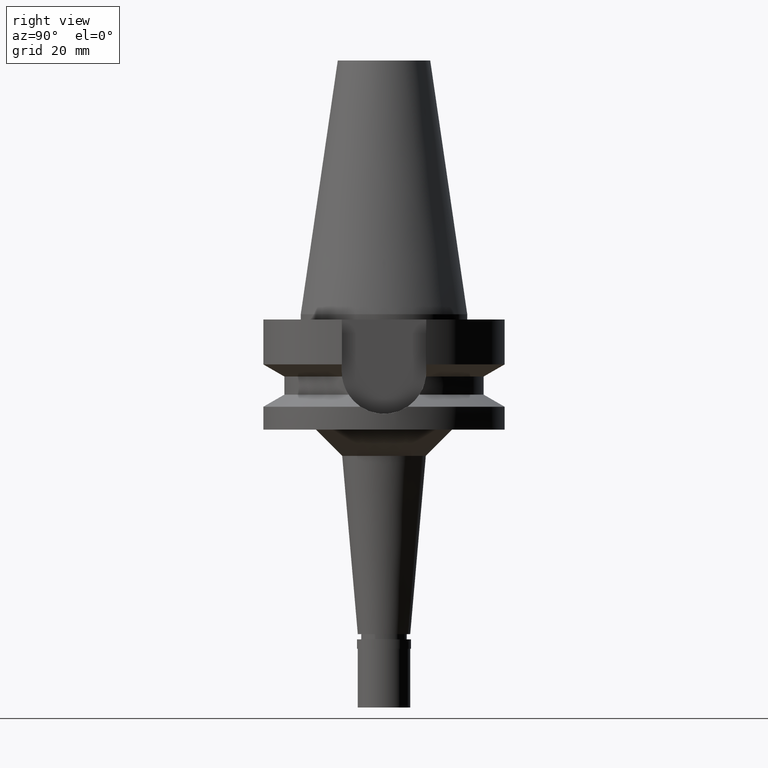
[diagram: clean part render]
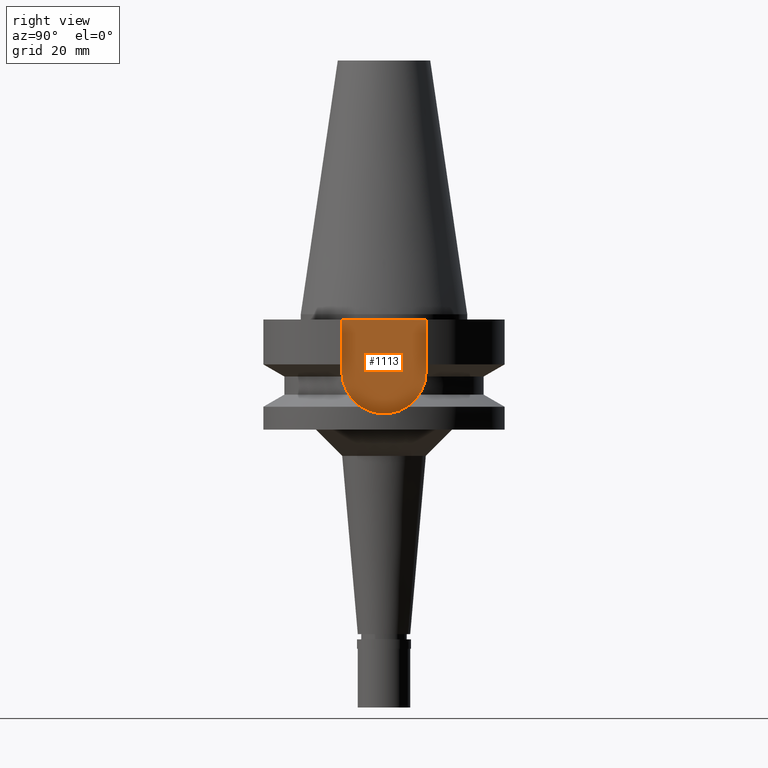
[diagram: same view with one face highlighted and labeled with its STEP entity id]
A machine part, right view. The second image highlights one B-rep face of the part: STEP entity #1113.
In plain terms, the highlighted planar face has unit normal (1, 0, 0).
Its self-contained STEP definition (entity closure, byte-faithful):
#97 = CARTESIAN_POINT ( 'NONE',  ( 16.29999999999999716, 8.050000000000000711, -10.94999999999999929 ) ) ;
#158 = EDGE_LOOP ( 'NONE', ( #774, #899, #2668, #2781 ) ) ;
#207 = DIRECTION ( 'NONE',  ( 0.0000000000000000000, -1.000000000000000000, 0.0000000000000000000 ) ) ;
#274 = DIRECTION ( 'NONE',  ( 0.0000000000000000000, 0.0000000000000000000, -1.000000000000000000 ) ) ;
#293 = AXIS2_PLACEMENT_3D ( 'NONE', #2816, #1009, #2874 ) ;
#357 = VECTOR ( 'NONE', #538, 1000.000000000000000 ) ;
#394 = EDGE_CURVE ( 'NONE', #2841, #922, #2369, .T. ) ;
#538 = DIRECTION ( 'NONE',  ( 0.0000000000000000000, 0.0000000000000000000, 1.000000000000000000 ) ) ;
#745 = LINE ( 'NONE', #1453, #877 ) ;
#774 = ORIENTED_EDGE ( 'NONE', *, *, #394, .F. ) ;
#826 = EDGE_CURVE ( 'NONE', #1112, #2841, #1688, .T. ) ;
#877 = VECTOR ( 'NONE', #274, 1000.000000000000000 ) ;
#899 = ORIENTED_EDGE ( 'NONE', *, *, #826, .F. ) ;
#922 = VERTEX_POINT ( 'NONE', #1530 ) ;
#933 = DIRECTION ( 'NONE',  ( 1.000000000000000000, 0.0000000000000000000, 0.0000000000000000000 ) ) ;
#947 = FACE_OUTER_BOUND ( 'NONE', #158, .T. ) ;
#1009 = DIRECTION ( 'NONE',  ( -1.000000000000000000, 0.0000000000000000000, 0.0000000000000000000 ) ) ;
#1112 = VERTEX_POINT ( 'NONE', #97 ) ;
#1113 = ADVANCED_FACE ( 'NONE', ( #947 ), #2754, .T. ) ;
#1453 = CARTESIAN_POINT ( 'NONE',  ( 16.29999999999999716, 8.050000000000000711, -1.000000000000000000 ) ) ;
#1530 = CARTESIAN_POINT ( 'NONE',  ( 16.29999999999999716, -8.050000000000000711, -1.000000000000000000 ) ) ;
#1603 = EDGE_CURVE ( 'NONE', #2662, #1112, #745, .T. ) ;
#1688 = CIRCLE ( 'NONE', #293, 8.050000000000000711 ) ;
#1859 = DIRECTION ( 'NONE',  ( 0.0000000000000000000, 1.000000000000000000, 0.0000000000000000000 ) ) ;
#1913 = CARTESIAN_POINT ( 'NONE',  ( 16.29999999999999716, -8.050000000000000711, -10.94999999999999929 ) ) ;
#2369 = LINE ( 'NONE', #1913, #357 ) ;
#2436 = EDGE_CURVE ( 'NONE', #2662, #922, #2686, .T. ) ;
#2495 = CARTESIAN_POINT ( 'NONE',  ( 16.29999999999999716, 8.050000000000000711, -1.000000000000000000 ) ) ;
#2574 = CARTESIAN_POINT ( 'NONE',  ( 16.29999999999999716, 8.050000000000000711, -1.000000000000000000 ) ) ;
#2617 = CARTESIAN_POINT ( 'NONE',  ( 16.29999999999999716, 0.0000000000000000000, 0.0000000000000000000 ) ) ;
#2621 = CARTESIAN_POINT ( 'NONE',  ( 16.29999999999999716, -8.050000000000000711, -10.94999999999999929 ) ) ;
#2662 = VERTEX_POINT ( 'NONE', #2574 ) ;
#2668 = ORIENTED_EDGE ( 'NONE', *, *, #1603, .F. ) ;
#2686 = LINE ( 'NONE', #2495, #2788 ) ;
#2754 = PLANE ( 'NONE',  #2935 ) ;
#2781 = ORIENTED_EDGE ( 'NONE', *, *, #2436, .T. ) ;
#2788 = VECTOR ( 'NONE', #207, 1000.000000000000000 ) ;
#2816 = CARTESIAN_POINT ( 'NONE',  ( 16.29999999999999716, 0.0000000000000000000, -10.94999999999999929 ) ) ;
#2841 = VERTEX_POINT ( 'NONE', #2621 ) ;
#2874 = DIRECTION ( 'NONE',  ( 0.0000000000000000000, 0.0000000000000000000, -1.000000000000000000 ) ) ;
#2935 = AXIS2_PLACEMENT_3D ( 'NONE', #2617, #933, #1859 ) ;